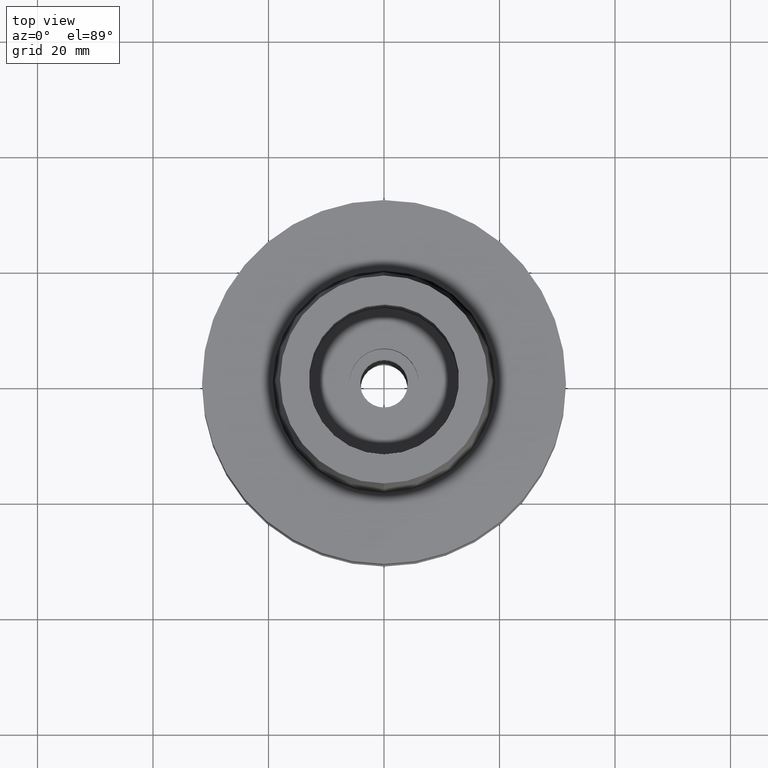
[diagram: clean part render]
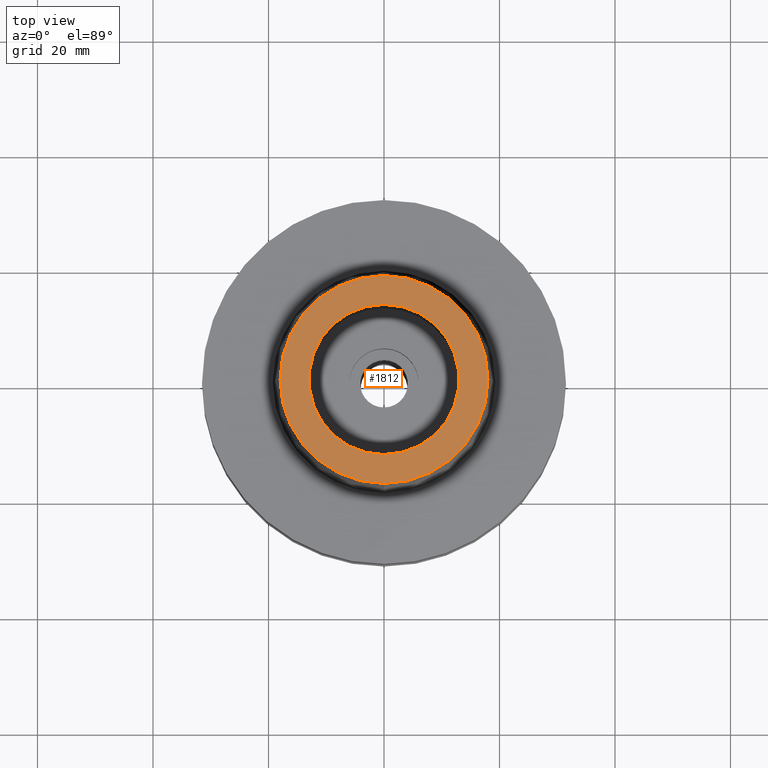
[diagram: same view with one face highlighted and labeled with its STEP entity id]
A machine part, top view. The second image highlights one B-rep face of the part: STEP entity #1812.
In plain terms, the highlighted planar face has unit normal (0, 0, 1).
Its self-contained STEP definition (entity closure, byte-faithful):
#55 = CARTESIAN_POINT ( 'NONE',  ( 0.0000000000000000000, 0.0000000000000000000, 25.00000000000000000 ) ) ;
#153 = EDGE_LOOP ( 'NONE', ( #1035, #2448 ) ) ;
#313 = FACE_OUTER_BOUND ( 'NONE', #625, .T. ) ;
#318 = EDGE_CURVE ( 'NONE', #2378, #1269, #2211, .T. ) ;
#331 = CARTESIAN_POINT ( 'NONE',  ( 0.0000000000000000000, 0.0000000000000000000, 25.00000000000000000 ) ) ;
#395 = DIRECTION ( 'NONE',  ( 0.0000000000000000000, 0.0000000000000000000, 1.000000000000000000 ) ) ;
#495 = DIRECTION ( 'NONE',  ( 0.0000000000000000000, 0.0000000000000000000, 1.000000000000000000 ) ) ;
#533 = EDGE_CURVE ( 'NONE', #835, #1679, #836, .T. ) ;
#545 = CARTESIAN_POINT ( 'NONE',  ( 0.0000000000000000000, 0.0000000000000000000, 25.00000000000000000 ) ) ;
#561 = DIRECTION ( 'NONE',  ( 0.0000000000000000000, 1.000000000000000000, 0.0000000000000000000 ) ) ;
#607 = FACE_BOUND ( 'NONE', #153, .T. ) ;
#625 = EDGE_LOOP ( 'NONE', ( #2405, #2284 ) ) ;
#835 = VERTEX_POINT ( 'NONE', #1563 ) ;
#836 = CIRCLE ( 'NONE', #2525, 13.00000000000000000 ) ;
#962 = PLANE ( 'NONE',  #1940 ) ;
#1010 = AXIS2_PLACEMENT_3D ( 'NONE', #55, #495, #2624 ) ;
#1028 = EDGE_CURVE ( 'NONE', #1269, #2378, #1988, .T. ) ;
#1035 = ORIENTED_EDGE ( 'NONE', *, *, #533, .F. ) ;
#1153 = AXIS2_PLACEMENT_3D ( 'NONE', #2471, #1430, #1870 ) ;
#1186 = CARTESIAN_POINT ( 'NONE',  ( 0.0000000000000000000, -13.00000000000000000, 25.00000000000000000 ) ) ;
#1200 = CARTESIAN_POINT ( 'NONE',  ( 0.0000000000000000000, -18.00000182882000033, 25.00000000000000000 ) ) ;
#1231 = DIRECTION ( 'NONE',  ( 0.0000000000000000000, 0.0000000000000000000, 1.000000000000000000 ) ) ;
#1269 = VERTEX_POINT ( 'NONE', #1613 ) ;
#1430 = DIRECTION ( 'NONE',  ( 0.0000000000000000000, 0.0000000000000000000, -1.000000000000000000 ) ) ;
#1466 = AXIS2_PLACEMENT_3D ( 'NONE', #1888, #2762, #2090 ) ;
#1563 = CARTESIAN_POINT ( 'NONE',  ( 0.0000000000000000000, 13.00000000000000000, 25.00000000000000000 ) ) ;
#1585 = CIRCLE ( 'NONE', #1010, 13.00000000000000000 ) ;
#1613 = CARTESIAN_POINT ( 'NONE',  ( 0.0000000000000000000, 18.00000182882000033, 25.00000000000000000 ) ) ;
#1679 = VERTEX_POINT ( 'NONE', #1186 ) ;
#1812 = ADVANCED_FACE ( 'NONE', ( #313, #607 ), #962, .T. ) ;
#1870 = DIRECTION ( 'NONE',  ( 0.0000000000000000000, 1.000000000000000000, 0.0000000000000000000 ) ) ;
#1888 = CARTESIAN_POINT ( 'NONE',  ( 0.0000000000000000000, 0.0000000000000000000, 25.00000000000000000 ) ) ;
#1940 = AXIS2_PLACEMENT_3D ( 'NONE', #331, #395, #2678 ) ;
#1988 = CIRCLE ( 'NONE', #1153, 18.00000182882000033 ) ;
#2072 = EDGE_CURVE ( 'NONE', #1679, #835, #1585, .T. ) ;
#2090 = DIRECTION ( 'NONE',  ( 0.0000000000000000000, -1.000000000000000000, 0.0000000000000000000 ) ) ;
#2211 = CIRCLE ( 'NONE', #1466, 18.00000182882000033 ) ;
#2284 = ORIENTED_EDGE ( 'NONE', *, *, #318, .F. ) ;
#2378 = VERTEX_POINT ( 'NONE', #1200 ) ;
#2405 = ORIENTED_EDGE ( 'NONE', *, *, #1028, .F. ) ;
#2448 = ORIENTED_EDGE ( 'NONE', *, *, #2072, .F. ) ;
#2471 = CARTESIAN_POINT ( 'NONE',  ( 0.0000000000000000000, 0.0000000000000000000, 25.00000000000000000 ) ) ;
#2525 = AXIS2_PLACEMENT_3D ( 'NONE', #545, #1231, #561 ) ;
#2624 = DIRECTION ( 'NONE',  ( 0.0000000000000000000, -1.000000000000000000, 0.0000000000000000000 ) ) ;
#2678 = DIRECTION ( 'NONE',  ( 1.000000000000000000, 0.0000000000000000000, 0.0000000000000000000 ) ) ;
#2762 = DIRECTION ( 'NONE',  ( 0.0000000000000000000, 0.0000000000000000000, -1.000000000000000000 ) ) ;